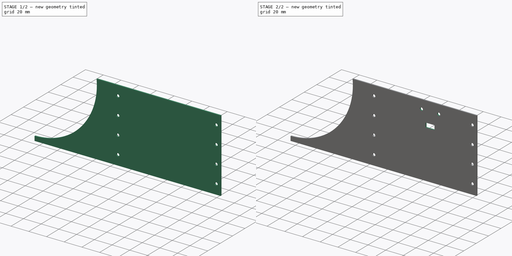
[diagram: build sequence overview — one tinted view per stage of 2, left to right]
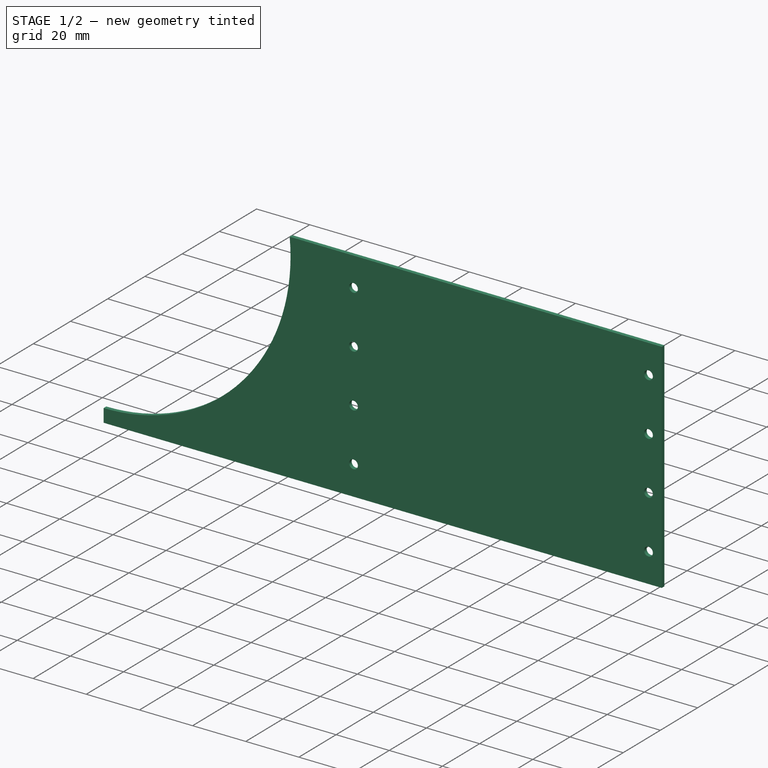
[diagram: stage 1 of 2 — iso view after this stage's code; geometry added in this stage tinted green]
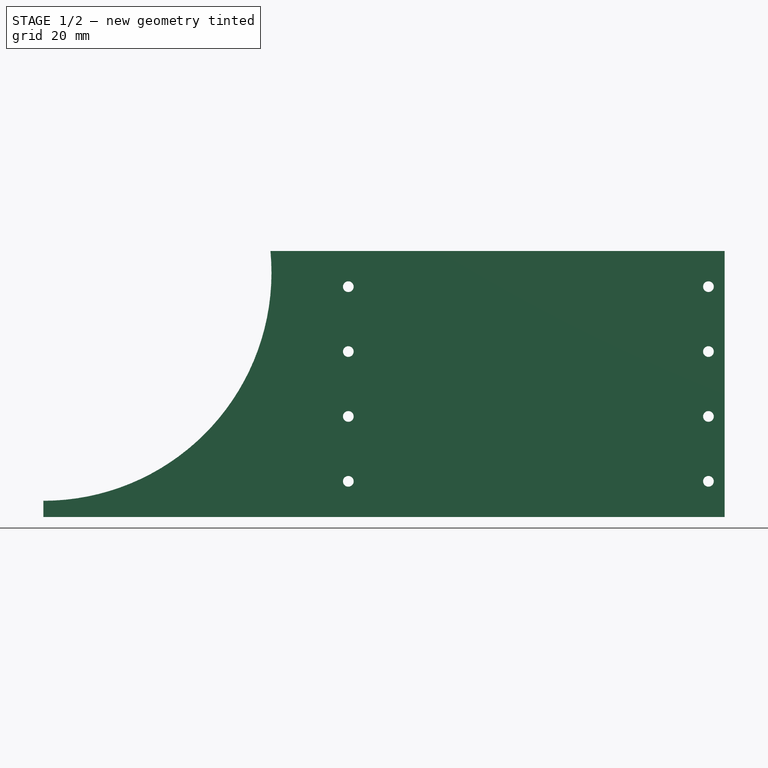
[diagram: stage 1 of 2 — front view after this stage's code; geometry added in this stage tinted green]
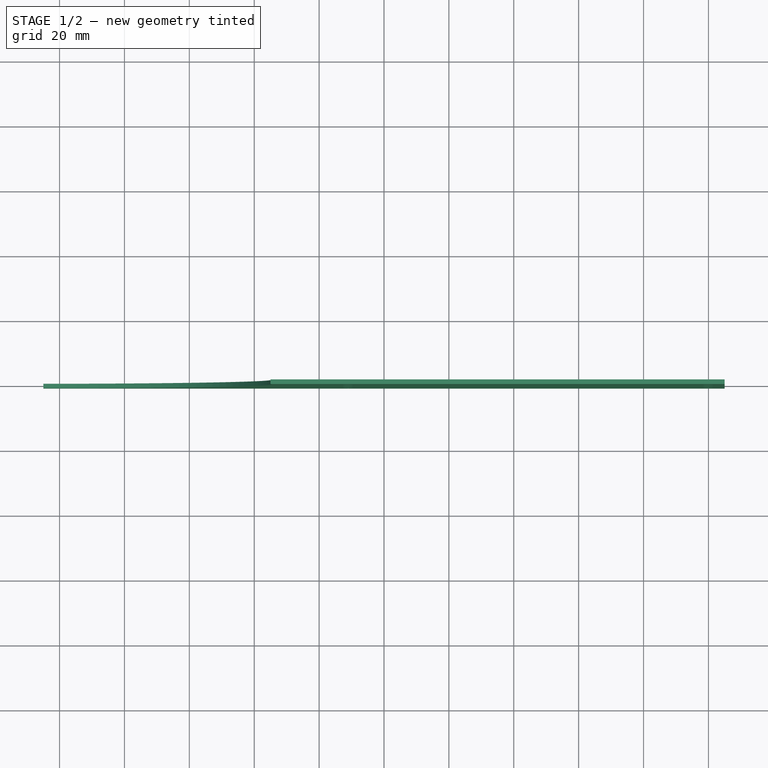
[diagram: stage 1 of 2 — top view after this stage's code; geometry added in this stage tinted green]
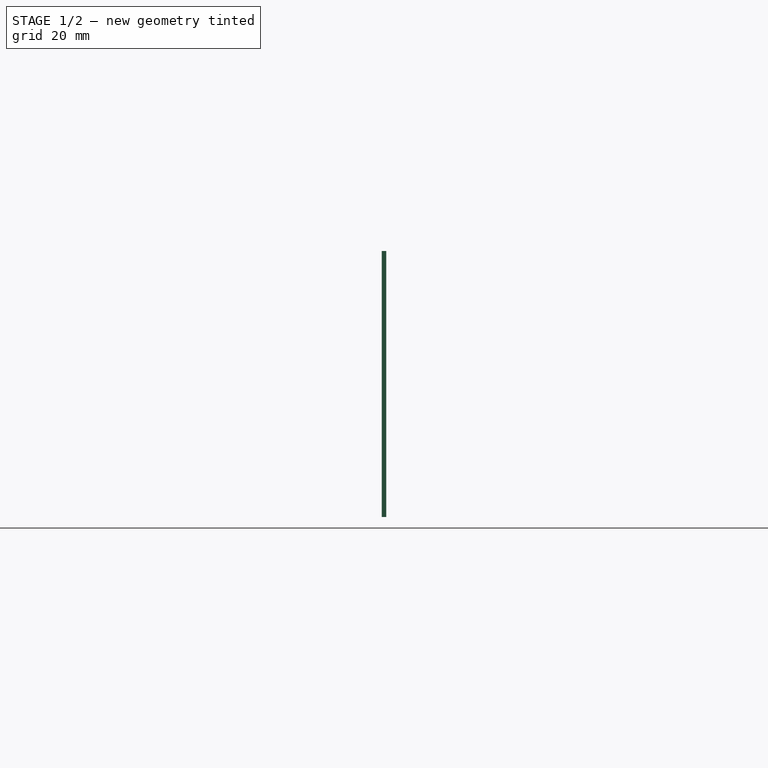
[diagram: stage 1 of 2 — right view after this stage's code; geometry added in this stage tinted green]
FCSTD DOCUMENT  (FreeCAD 1.0R39109 (Git))
Label: wall_curve
License: All rights reserved
LicenseURL: https://en.wikipedia.org/wiki/All_rights_reserved
objects: Sketcher::SketchObject×3, PartDesign::Pocket×2, PartDesign::Pad×1, PartDesign::Body×1
note: 16 computed .brp shape members not serialized (recipe doc carries the construction recipe); baked Part::Feature solids carry a one-line shape summary decoded from their .brp

FEATURE [Sketcher::SketchObject] Sketch
  ArcFitTolerance = 1e-06
  AttachmentSupport = -> [XZ_Plane]
  FullyConstrained = true
  MakeInternals = false
  MapMode = 5
  Placement = pos=(0,0,0) rot=(1,0,0;1.5708rad)
  sketch-geometry (15):
    g0: LineSegment [constr] StartX=-105 StartY=40 StartZ=0 EndX=-105 EndY=-40 EndZ=0
    g1: LineSegment [constr] StartX=-105 StartY=-40 StartZ=0 EndX=105 EndY=-40 EndZ=0
    g2: LineSegment [constr] StartX=105 StartY=-40 StartZ=0 EndX=105 EndY=40 EndZ=0
    g3: LineSegment [constr] StartX=105 StartY=40 StartZ=0 EndX=-105 EndY=40 EndZ=0
    g4: GeomPoint [constr] X=0 Y=0 Z=0
    g5: LineSegment [constr] StartX=-105 StartY=41 StartZ=0 EndX=-105 EndY=-41 EndZ=0
    g6: LineSegment [constr] StartX=-105 StartY=-41 StartZ=0 EndX=105 EndY=-41 EndZ=0
    g7: LineSegment [constr] StartX=105 StartY=-41 StartZ=0 EndX=105 EndY=41 EndZ=0
    g8: LineSegment [constr] StartX=105 StartY=41 StartZ=0 EndX=-105 EndY=41 EndZ=0
    g9: GeomPoint [constr] X=0 Y=0 Z=0
    g10: LineSegment StartX=-105 StartY=-41 StartZ=0 EndX=-105 EndY=-36 EndZ=0
    g11: ArcOfCircle CenterX=-105 CenterY=34.3182 CenterZ=0 NormalX=0 NormalY=0 NormalZ=1 AngleXU=0 Radius=70.3182 StartAngle=4.71239 EndAngle=6.37835
    g12: LineSegment StartX=-35 StartY=41 StartZ=0 EndX=105 EndY=41 EndZ=0
    g13: LineSegment StartX=105 StartY=41 StartZ=0 EndX=105 EndY=-41 EndZ=0
    g14: LineSegment StartX=105 StartY=-41 StartZ=0 EndX=-105 EndY=-41 EndZ=0
  constraints (37):
    c: Coincident(g0,g1)
    c: Coincident(g1,g2)
    c: Coincident(g2,g3)
    c: Coincident(g3,g0)
    c: Vertical(g0)
    c: Vertical(g2)
    c: Horizontal(g1)
    c: Horizontal(g3)
    c: Symmetric(g2,g0,g4)
    c: Coincident(g4,g-1)
    c: Coincident(g5,g6)
    c: Coincident(g6,g7)
    c: Coincident(g7,g8)
    c: Coincident(g8,g5)
    c: Vertical(g5)
    c: Vertical(g7)
    c: Horizontal(g6)
    c: Horizontal(g8)
    c: Symmetric(g7,g5,g9)
    c: Coincident(g9,g4)
    c: Vertical(g6,g1)
    c: DistanceY(g2,g2) = 80
    c: DistanceY(g6,g1) = 1
    c: DistanceX(g8,g8) = 210
    c: Coincident(g5,g10)
    c: PointOnObject(g10,g0)
    c: Perpendicular(g10,g11) = 4.71239
    c: Coincident(g11,g12)
    c: PointOnObject(g12,g2)
    c: Horizontal(g12)
    c: Coincident(g12,g13)
    c: Coincident(g13,g6)
    c: Coincident(g13,g14)
    c: Coincident(g14,g10)
    c: PointOnObject(g11,g8)
    c: DistanceX(g12,g12) = 140
    c: DistanceY(g10,g10) = 5
FEATURE [PartDesign::Pad] Pad  label="BasePad"
  Direction = (0,-1,2e-16)
  Length = 0.7
  Length2 = 0.7
  Placement = pos=(0,0,0) rot=(1,0,0;1.5708rad)
  Profile = -> Sketch
  ReferenceAxis = -> Sketch [N_Axis]
  Refine = true
  Suppressed = false
  Type = 4
FEATURE [Sketcher::SketchObject] Sketch001
  ArcFitTolerance = 1e-06
  AttachmentSupport = -> [Pad]
  ExternalGeometry = -> [Pad]
  FullyConstrained = true
  MakeInternals = false
  MapMode = 5
  Placement = pos=(0,-0.7,0) rot=(1,0,0;1.5708rad)
  sketch-geometry (8):
    g0: Circle CenterX=100 CenterY=30 CenterZ=0 NormalX=0 NormalY=0 NormalZ=1 AngleXU=0 Radius=1.65
    g1: Circle CenterX=100 CenterY=10 CenterZ=0 NormalX=0 NormalY=0 NormalZ=1 AngleXU=0 Radius=1.65
    g2: Circle CenterX=-11 CenterY=30 CenterZ=0 NormalX=0 NormalY=0 NormalZ=1 AngleXU=0 Radius=1.65
    g3: Circle CenterX=-11 CenterY=10 CenterZ=0 NormalX=0 NormalY=0 NormalZ=1 AngleXU=0 Radius=1.65
    g4: Circle CenterX=100 CenterY=-30 CenterZ=0 NormalX=0 NormalY=0 NormalZ=1 AngleXU=0 Radius=1.65
    g5: Circle CenterX=100 CenterY=-10 CenterZ=0 NormalX=0 NormalY=0 NormalZ=1 AngleXU=0 Radius=1.65
    g6: Circle CenterX=-11 CenterY=-30 CenterZ=0 NormalX=0 NormalY=0 NormalZ=1 AngleXU=0 Radius=1.65
    g7: Circle CenterX=-11 CenterY=-10 CenterZ=0 NormalX=0 NormalY=0 NormalZ=1 AngleXU=0 Radius=1.65
  constraints (20):
    c: Vertical(g3,g2)
    c: Equal(g2,g3)
    c: Equal(g3,g0)
    c: Equal(g0,g1)
    c: Vertical(g1,g0)
    c: DistanceX(g3,g1) = 111
    c: DistanceY(g3,g2) = 20
    c: Horizontal(g2,g0)
    c: Horizontal(g3,g1)
    c: DistanceY(g0,g-3) = 11
    c: DistanceX(g0,g-3) = 5
    c: Radius(g0) = 1.65
    c: Equal(g6,g7)
    c: Equal(g7,g4)
    c: Equal(g4,g5)
    c: Radius(g4) = 1.65
    c: Symmetric(g3,g7,g-1)
    c: Symmetric(g6,g2,g-1)
    c: Symmetric(g4,g0,g-1)
    c: Symmetric(g1,g5,g-1)
FEATURE [PartDesign::Pocket] Pocket  label="ScrewPockets"
  BaseFeature = -> Pad
  Direction = (0,1,-2e-16)
  Length = 5
  Length2 = 5
  Placement = pos=(0,0,0) rot=(1,0,0;1.5708rad)
  Profile = -> Sketch001
  ReferenceAxis = -> Sketch001 [N_Axis]
  Refine = true
  Suppressed = false
  Type = 1
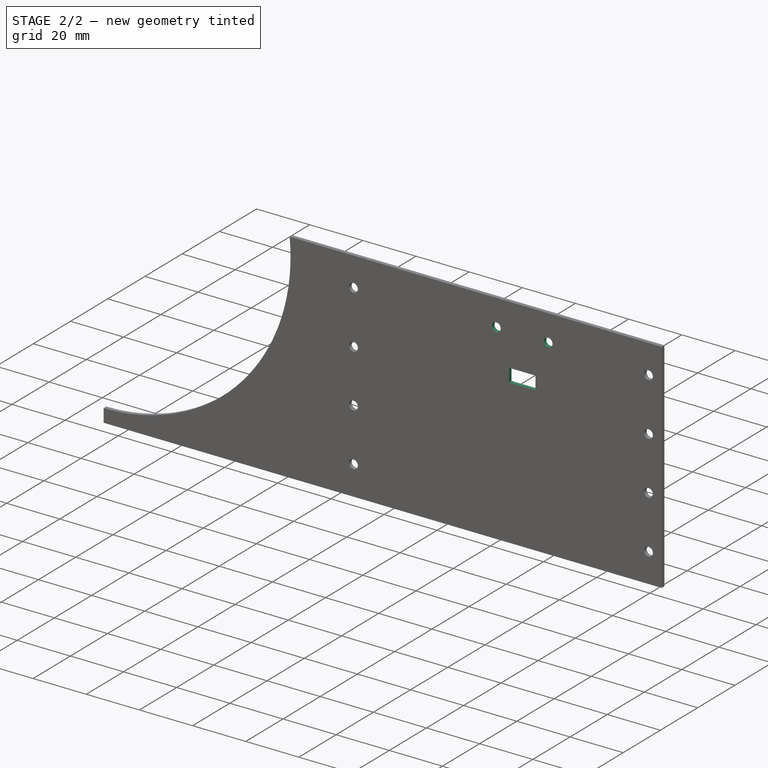
[diagram: stage 2 of 2 — iso view after this stage's code; geometry added in this stage tinted green]
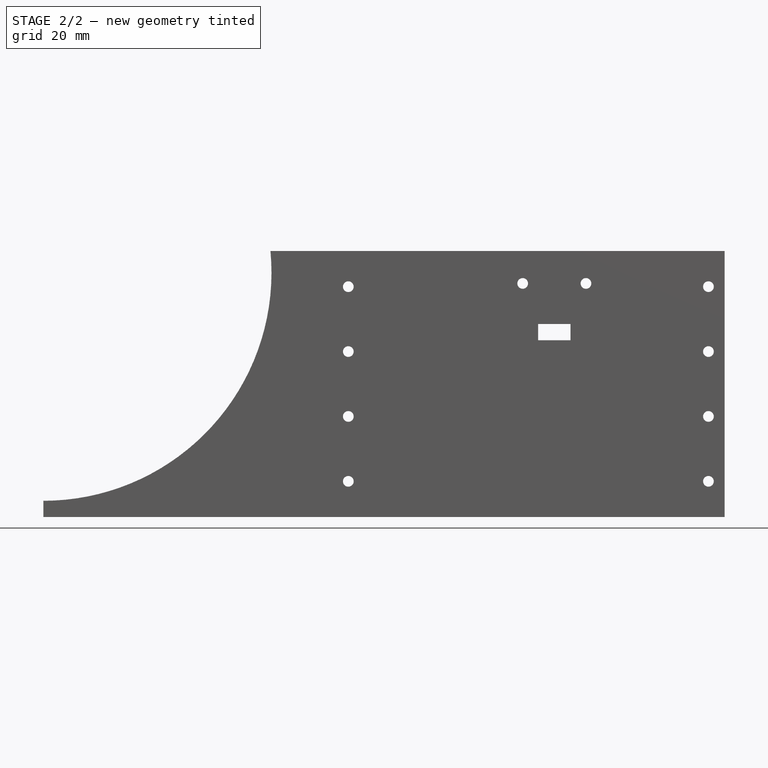
[diagram: stage 2 of 2 — front view after this stage's code; geometry added in this stage tinted green]
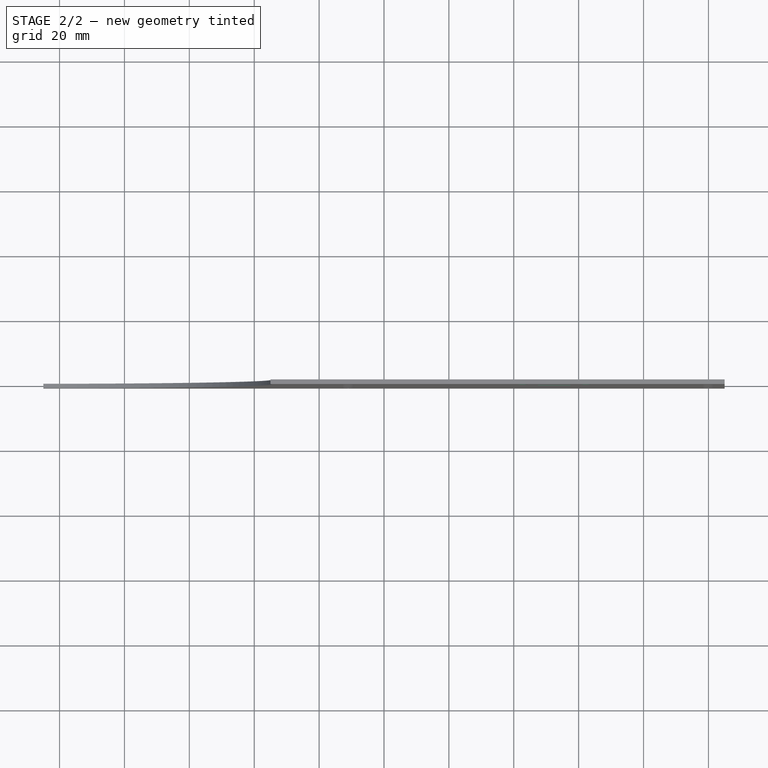
[diagram: stage 2 of 2 — top view after this stage's code; geometry added in this stage tinted green]
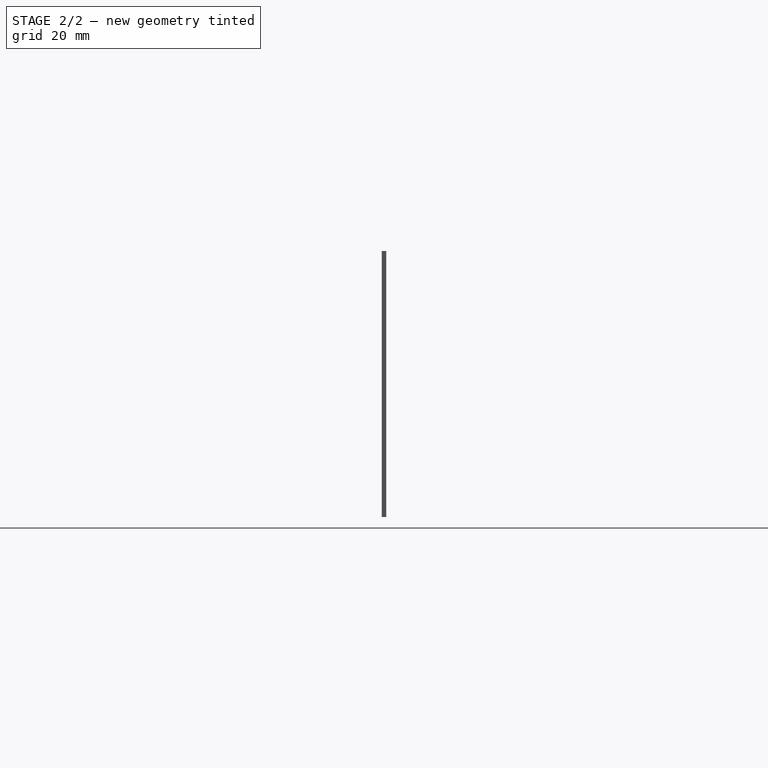
[diagram: stage 2 of 2 — right view after this stage's code; geometry added in this stage tinted green]
FEATURE [Sketcher::SketchObject] Sketch002
  ArcFitTolerance = 1e-06
  AttachmentSupport = -> [Pocket]
  ExternalGeometry = -> [Pocket]
  FullyConstrained = true
  MakeInternals = false
  MapMode = 5
  Placement = pos=(0,-0.7,0) rot=(1,0,0;1.5708rad)
  sketch-geometry (11):
    g0: LineSegment [constr] StartX=105 StartY=41 StartZ=0 EndX=2.84e-14 EndY=41 EndZ=0
    g1: GeomPoint X=52.5 Y=41 Z=0
    g2: Circle CenterX=42.75 CenterY=31 CenterZ=0 NormalX=0 NormalY=0 NormalZ=1 AngleXU=0 Radius=1.65
    g3: Circle CenterX=62.25 CenterY=31 CenterZ=0 NormalX=0 NormalY=0 NormalZ=1 AngleXU=0 Radius=1.65
    g4: LineSegment [constr] StartX=42.75 StartY=31 StartZ=0 EndX=62.25 EndY=31 EndZ=0
    g5: GeomPoint [constr] X=52.5 Y=31 Z=0
    g6: LineSegment StartX=47.5 StartY=18.5 StartZ=0 EndX=47.5 EndY=13.5 EndZ=0
    g7: LineSegment StartX=47.5 StartY=13.5 StartZ=0 EndX=57.5 EndY=13.5 EndZ=0
    g8: LineSegment StartX=57.5 StartY=13.5 StartZ=0 EndX=57.5 EndY=18.5 EndZ=0
    g9: LineSegment StartX=57.5 StartY=18.5 StartZ=0 EndX=47.5 EndY=18.5 EndZ=0
    g10: GeomPoint [constr] X=52.5 Y=16 Z=0
  constraints (26):
    c: Coincident(g0,g-3)
    c: PointOnObject(g0,g-3)
    c: DistanceX(g0,g0) = 105
    c: Symmetric(g0,g0,g1)
    c: Horizontal(g2,g3)
    c: Equal(g2,g3)
    c: Radius(g3) = 1.65
    c: DistanceX(g2,g3) = 19.5
    c: Coincident(g4,g2)
    c: Coincident(g4,g3)
    c: Symmetric(g4,g4,g5)
    c: Vertical(g5,g1)
    c: DistanceY(g5,g1) = 10
    c: Coincident(g6,g7)
    c: Coincident(g7,g8)
    c: Coincident(g8,g9)
    c: Coincident(g9,g6)
    c: Vertical(g6)
    c: Vertical(g8)
    c: Horizontal(g7)
    c: Horizontal(g9)
    c: Symmetric(g8,g6,g10)
    c: DistanceX(g9,g9) = 10
    c: DistanceY(g10,g3) = 15
    c: DistanceY(g8,g8) = 5
    c: Vertical(g5,g10)
FEATURE [PartDesign::Pocket] Pocket001  label="TouchPocket"
  BaseFeature = -> Pocket
  Direction = (0,1,-2e-16)
  Length = 5
  Length2 = 5
  Placement = pos=(0,0,0) rot=(1,0,0;1.5708rad)
  Profile = -> Sketch002
  ReferenceAxis = -> Sketch002 [N_Axis]
  Refine = true
  Suppressed = false
  Type = 1
FEATURE [PartDesign::Body] Body  label="wall_curve"
  AllowCompound = false
  Group = -> [Sketch,Pad,Sketch001,Pocket,Sketch002,Pocket001]
  Origin = -> Origin
  Tip = -> Pocket001
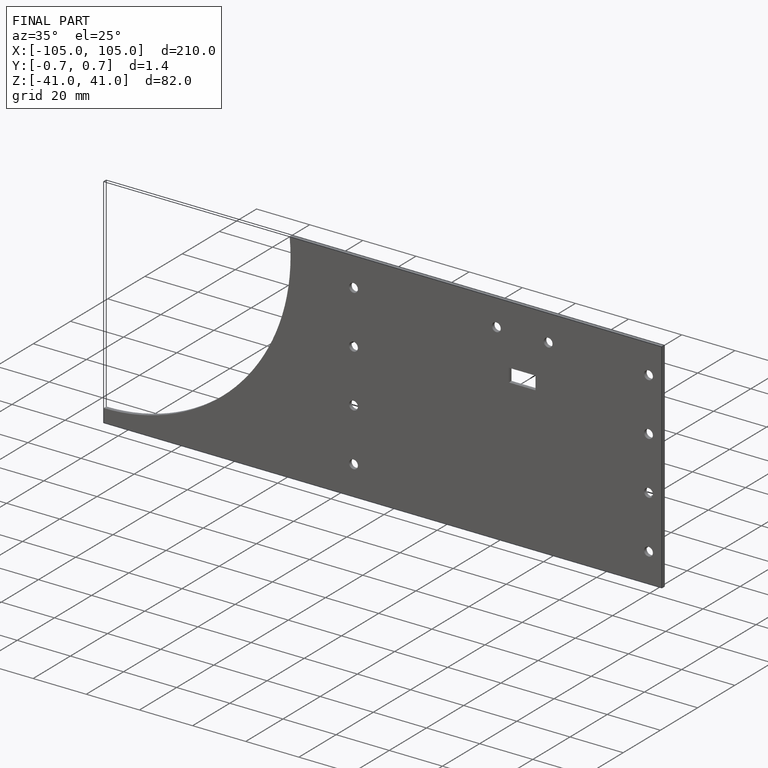
[diagram: finished part — iso view with bounding-box wireframe]
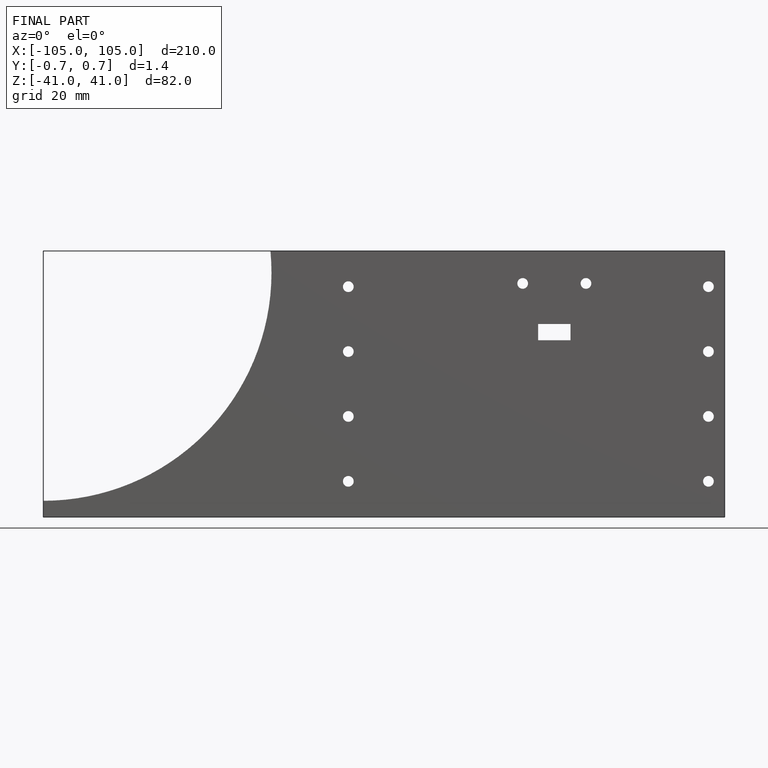
[diagram: finished part — front view with bounding-box wireframe]
